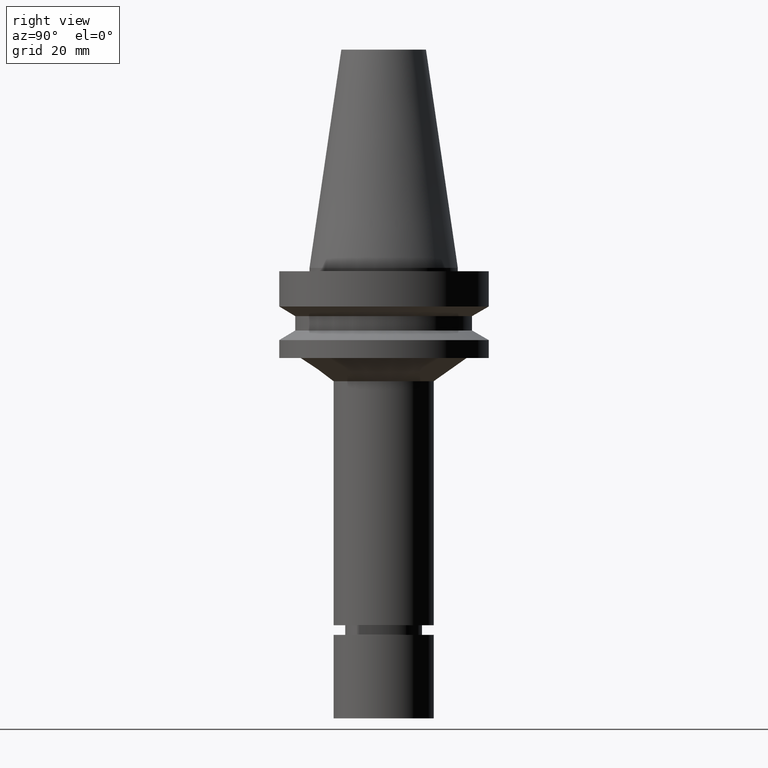
[diagram: clean part render]
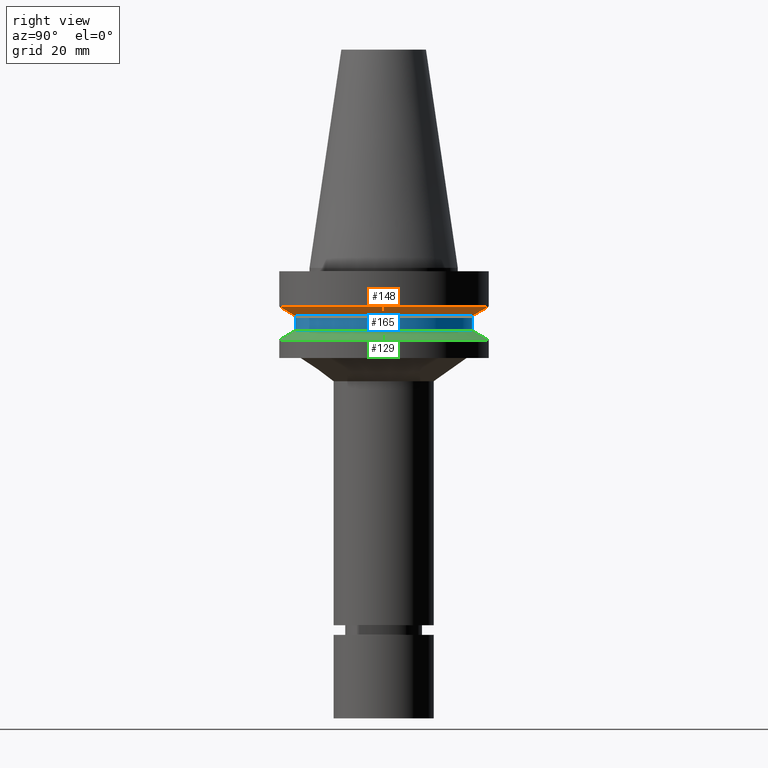
[diagram: same view with three faces highlighted in distinct colors, each labeled with its STEP entity id]
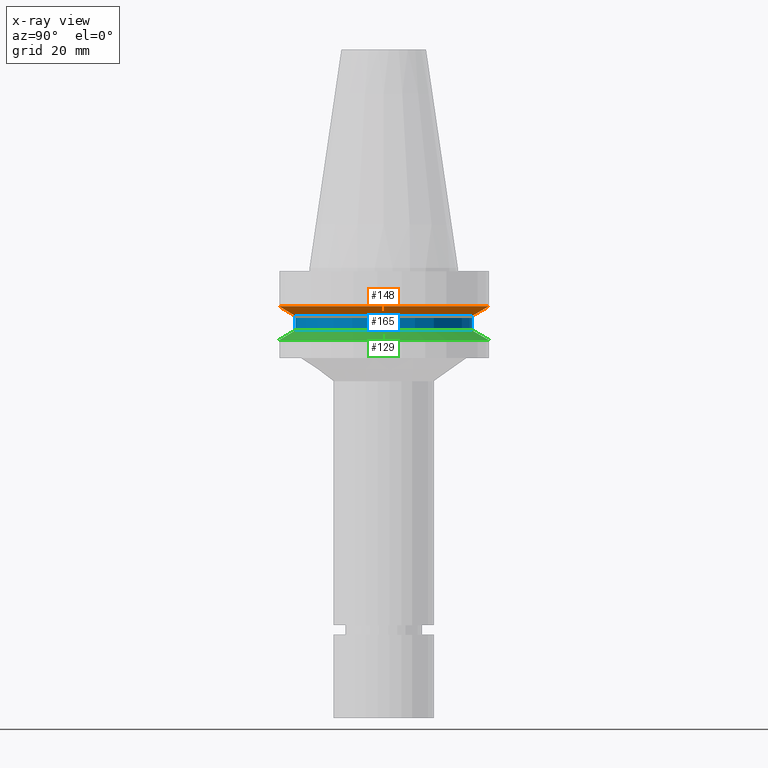
[diagram: x-ray of the same camera — body ghosted, the three highlighted faces saturated]
A machine part, right view with three faces highlighted in distinct colors.
The next image is the same camera in x-ray (body ghosted, the three faces saturated) — at least one of them is partly hidden behind the body in this view.
Their STEP definitions:

[orange] entity #148 — the highlighted conical surface has half-angle 60 deg.
#92=EDGE_CURVE('Unnamed[1]',#227,#227,#228,.T.);
#107=EDGE_CURVE('Unnamed[1]',#249,#249,#250,.T.);
#148=ADVANCED_FACE('Unnamed[1]',(#311,#312),#313,.T.);
#227=VERTEX_POINT('',#410);
#228=CIRCLE('',#411,31.5000000000003);
#249=VERTEX_POINT('',#437);
#250=CIRCLE('',#438,26.4999999999994);
#311=FACE_BOUND('',#513,.T.);
#312=FACE_BOUND('',#514,.T.);
#313=CONICAL_SURFACE('',#515,28.9999999999999,1.04719755119657);
#410=CARTESIAN_POINT('',(7.08182973902924E-016,31.5000000000004,-11.5655056526664));
#411=AXIS2_PLACEMENT_3D('',#609,#610,#611);
#437=CARTESIAN_POINT('',(8.8494551369045E-016,26.4999999999995,-14.4522569986152));
#438=AXIS2_PLACEMENT_3D('',#631,#632,#633);
#513=EDGE_LOOP('',(#700));
#514=EDGE_LOOP('',(#701));
#515=AXIS2_PLACEMENT_3D('',#702,#703,#704);
#609=CARTESIAN_POINT('',(7.08182973902924E-016,6.98297360622318E-014,-11.5655056526664));
#610=DIRECTION('',(6.12323399573677E-017,-9.41263592148422E-017,-1.0));
#611=DIRECTION('',(9.364244956235E-034,1.0,-9.41263592148422E-017));
#631=CARTESIAN_POINT('',(8.8494551369045E-016,6.95580166680791E-014,-14.4522569986152));
#632=DIRECTION('',(6.12323399573677E-017,-9.41263592148422E-017,-1.0));
#633=DIRECTION('',(9.36424495623502E-034,1.0,-9.41263592148422E-017));
#700=ORIENTED_EDGE('',*,*,#107,.F.);
#701=ORIENTED_EDGE('',*,*,#92,.T.);
#702=CARTESIAN_POINT('',(7.96564243796687E-016,6.96938763651555E-014,-13.0088813256408));
#703=DIRECTION('',(-6.12323399573676E-017,9.41263592148422E-017,1.0));
#704=DIRECTION('',(9.364244956235E-034,1.0,-9.41263592148422E-017));

[blue] entity #165 — the highlighted cylindrical surface (bore or boss wall) has radius 26.5 mm, axis along (0, -0, -1).
#107=EDGE_CURVE('Unnamed[1]',#249,#249,#250,.T.);
#157=EDGE_CURVE('Unnamed[1]',#326,#326,#327,.T.);
#165=ADVANCED_FACE('Unnamed[1]',(#337,#338),#339,.T.);
#249=VERTEX_POINT('',#437);
#250=CIRCLE('',#438,26.4999999999994);
#326=VERTEX_POINT('',#532);
#327=CIRCLE('',#533,26.5);
#337=FACE_BOUND('',#546,.T.);
#338=FACE_BOUND('',#547,.T.);
#339=CYLINDRICAL_SURFACE('',#548,26.4999999999997);
#437=CARTESIAN_POINT('',(8.8494551369045E-016,26.4999999999995,-14.4522569986152));
#438=AXIS2_PLACEMENT_3D('',#631,#632,#633);
#532=CARTESIAN_POINT('',(1.1479681728942E-015,26.5,-18.7477430013855));
#533=AXIS2_PLACEMENT_3D('',#717,#718,#719);
#546=EDGE_LOOP('',(#729));
#547=EDGE_LOOP('',(#730));
#548=AXIS2_PLACEMENT_3D('',#731,#732,#733);
#631=CARTESIAN_POINT('',(8.8494551369045E-016,6.95580166680791E-014,-14.4522569986152));
#632=DIRECTION('',(6.12323399573677E-017,-9.41263592148422E-017,-1.0));
#633=DIRECTION('',(9.36424495623502E-034,1.0,-9.41263592148422E-017));
#717=CARTESIAN_POINT('',(1.1479681728942E-015,6.91536982095801E-014,-18.7477430013855));
#718=DIRECTION('',(6.12323399573677E-017,-9.41263592148422E-017,-1.0));
#719=DIRECTION('',(9.36424495623502E-034,1.0,-9.41263592148422E-017));
#729=ORIENTED_EDGE('',*,*,#157,.F.);
#730=ORIENTED_EDGE('',*,*,#107,.T.);
#731=CARTESIAN_POINT('',(1.01645684329232E-015,6.93558574388296E-014,-16.6000000000004));
#732=DIRECTION('',(6.12323399573677E-017,-9.41263592148422E-017,-1.0));
#733=DIRECTION('',(9.36424495623502E-034,1.0,-9.41263592148422E-017));

[green] entity #129 — the highlighted conical surface has half-angle 60 deg.
#126=EDGE_CURVE('Unnamed[1]',#279,#279,#280,.T.);
#129=ADVANCED_FACE('Unnamed[1]',(#283,#284),#285,.T.);
#157=EDGE_CURVE('Unnamed[1]',#326,#326,#327,.T.);
#279=VERTEX_POINT('',#474);
#280=CIRCLE('',#475,31.5000000000006);
#283=FACE_BOUND('',#479,.T.);
#284=FACE_BOUND('',#480,.T.);
#285=CONICAL_SURFACE('',#481,29.0000000000003,1.04719755119651);
#326=VERTEX_POINT('',#532);
#327=CIRCLE('',#533,26.5);
#474=CARTESIAN_POINT('',(1.32473071268174E-015,31.5000000000007,-21.6344943473346));
#475=AXIS2_PLACEMENT_3D('',#666,#667,#668);
#479=EDGE_LOOP('',(#670));
#480=EDGE_LOOP('',(#671));
#481=AXIS2_PLACEMENT_3D('',#672,#673,#674);
#532=CARTESIAN_POINT('',(1.1479681728942E-015,26.5,-18.7477430013855));
#533=AXIS2_PLACEMENT_3D('',#717,#718,#719);
#666=CARTESIAN_POINT('',(1.32473071268174E-015,6.88819788154273E-014,-21.6344943473346));
#667=DIRECTION('',(6.12323399573677E-017,-9.41263592148422E-017,-1.0));
#668=DIRECTION('',(9.36424495623503E-034,1.0,-9.41263592148422E-017));
#670=ORIENTED_EDGE('',*,*,#126,.F.);
#671=ORIENTED_EDGE('',*,*,#157,.T.);
#672=CARTESIAN_POINT('',(1.23634944278797E-015,6.90178385125037E-014,-20.1911186743601));
#673=DIRECTION('',(6.12323399573677E-017,-9.41263592148422E-017,-1.0));
#674=DIRECTION('',(9.36424495623502E-034,1.0,-9.41263592148422E-017));
#717=CARTESIAN_POINT('',(1.1479681728942E-015,6.91536982095801E-014,-18.7477430013855));
#718=DIRECTION('',(6.12323399573677E-017,-9.41263592148422E-017,-1.0));
#719=DIRECTION('',(9.36424495623502E-034,1.0,-9.41263592148422E-017));